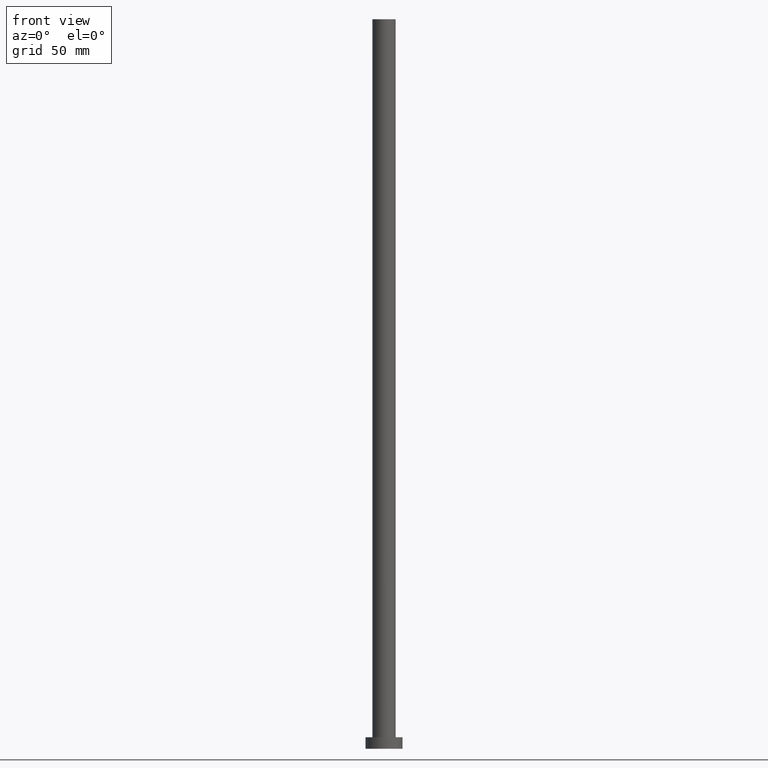
[diagram: clean part render]
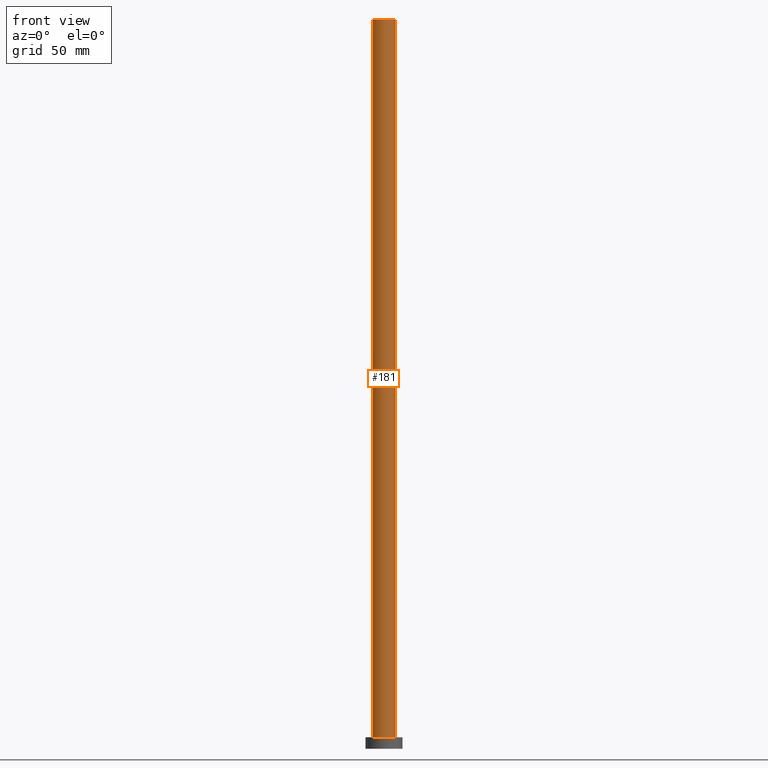
[diagram: same view with one face highlighted and labeled with its STEP entity id]
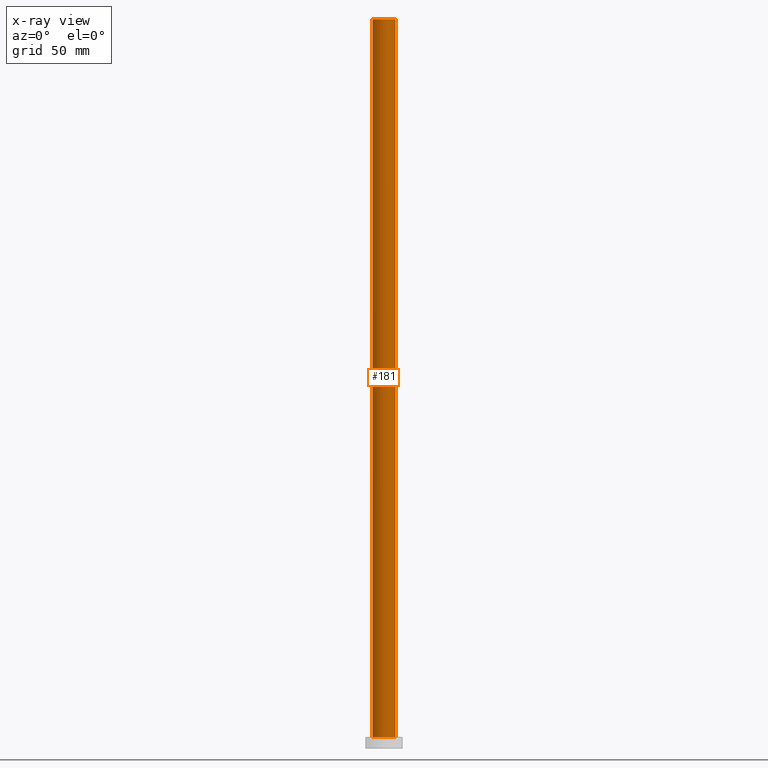
[diagram: x-ray of the same camera — body ghosted, the highlighted face saturated]
A machine part, front view. The second image highlights one B-rep face of the part: STEP entity #181.
The next image is the same camera in x-ray: the body ghosted, the highlighted face saturated — about 0% of this face is hidden behind the body in this view.
In plain terms, the highlighted cylindrical surface (edge-blend (fillet) strip) has radius 5 mm, axis along (-0, -0, -1).
Its self-contained STEP definition (entity closure, byte-faithful):
#4 = CARTESIAN_POINT ( 'NONE',  ( 0.000000000000000000, 0.000000000000000000, 5.000000000000000000 ) ) ;
#17 = ORIENTED_EDGE ( 'NONE', *, *, #248, .T. ) ;
#22 = CARTESIAN_POINT ( 'NONE',  ( 5.000000000000000000, 6.123233995736766282E-16, 315.0000000000000000 ) ) ;
#35 = VECTOR ( 'NONE', #75, 1000.000000000000000 ) ;
#36 = CARTESIAN_POINT ( 'NONE',  ( 0.000000000000000000, 0.000000000000000000, 315.0000000000000000 ) ) ;
#39 = VECTOR ( 'NONE', #61, 1000.000000000000000 ) ;
#40 = VERTEX_POINT ( 'NONE', #149 ) ;
#54 = LINE ( 'NONE', #147, #35 ) ;
#61 = DIRECTION ( 'NONE',  ( -0.000000000000000000, -0.000000000000000000, -1.000000000000000000 ) ) ;
#62 = ORIENTED_EDGE ( 'NONE', *, *, #219, .T. ) ;
#65 = AXIS2_PLACEMENT_3D ( 'NONE', #4, #133, #81 ) ;
#75 = DIRECTION ( 'NONE',  ( -0.000000000000000000, -0.000000000000000000, -1.000000000000000000 ) ) ;
#81 = DIRECTION ( 'NONE',  ( 1.000000000000000000, 0.000000000000000000, 0.000000000000000000 ) ) ;
#84 = LINE ( 'NONE', #184, #39 ) ;
#102 = DIRECTION ( 'NONE',  ( 0.000000000000000000, 0.000000000000000000, 1.000000000000000000 ) ) ;
#104 = EDGE_CURVE ( 'NONE', #183, #152, #118, .T. ) ;
#111 = VERTEX_POINT ( 'NONE', #225 ) ;
#112 = DIRECTION ( 'NONE',  ( -0.000000000000000000, -0.000000000000000000, -1.000000000000000000 ) ) ;
#113 = CARTESIAN_POINT ( 'NONE',  ( 0.000000000000000000, 0.000000000000000000, 315.0000000000000000 ) ) ;
#118 = CIRCLE ( 'NONE', #233, 5.000000000000000000 ) ;
#123 = ORIENTED_EDGE ( 'NONE', *, *, #104, .F. ) ;
#130 = DIRECTION ( 'NONE',  ( 1.000000000000000000, 0.000000000000000000, 0.000000000000000000 ) ) ;
#133 = DIRECTION ( 'NONE',  ( 0.000000000000000000, 0.000000000000000000, 1.000000000000000000 ) ) ;
#145 = CIRCLE ( 'NONE', #65, 5.000000000000000000 ) ;
#147 = CARTESIAN_POINT ( 'NONE',  ( 5.000000000000000000, 6.123233995736766282E-16, 315.0000000000000000 ) ) ;
#149 = CARTESIAN_POINT ( 'NONE',  ( 5.000000000000000000, 6.123233995736766282E-16, 5.000000000000000000 ) ) ;
#152 = VERTEX_POINT ( 'NONE', #22 ) ;
#153 = FACE_OUTER_BOUND ( 'NONE', #178, .T. ) ;
#157 = EDGE_CURVE ( 'NONE', #152, #40, #54, .T. ) ;
#161 = ORIENTED_EDGE ( 'NONE', *, *, #157, .F. ) ;
#178 = EDGE_LOOP ( 'NONE', ( #161, #123, #17, #62 ) ) ;
#181 = ADVANCED_FACE ( 'NONE', ( #153 ), #244, .T. ) ;
#182 = DIRECTION ( 'NONE',  ( -1.000000000000000000, 0.000000000000000000, 0.000000000000000000 ) ) ;
#183 = VERTEX_POINT ( 'NONE', #199 ) ;
#184 = CARTESIAN_POINT ( 'NONE',  ( -5.000000000000000000, 0.000000000000000000, 315.0000000000000000 ) ) ;
#199 = CARTESIAN_POINT ( 'NONE',  ( -5.000000000000000000, 0.000000000000000000, 315.0000000000000000 ) ) ;
#200 = AXIS2_PLACEMENT_3D ( 'NONE', #36, #112, #182 ) ;
#219 = EDGE_CURVE ( 'NONE', #111, #40, #145, .T. ) ;
#225 = CARTESIAN_POINT ( 'NONE',  ( -5.000000000000000000, 0.000000000000000000, 5.000000000000000000 ) ) ;
#233 = AXIS2_PLACEMENT_3D ( 'NONE', #113, #102, #130 ) ;
#244 = CYLINDRICAL_SURFACE ( 'NONE', #200, 5.000000000000000000 ) ;
#248 = EDGE_CURVE ( 'NONE', #183, #111, #84, .T. ) ;